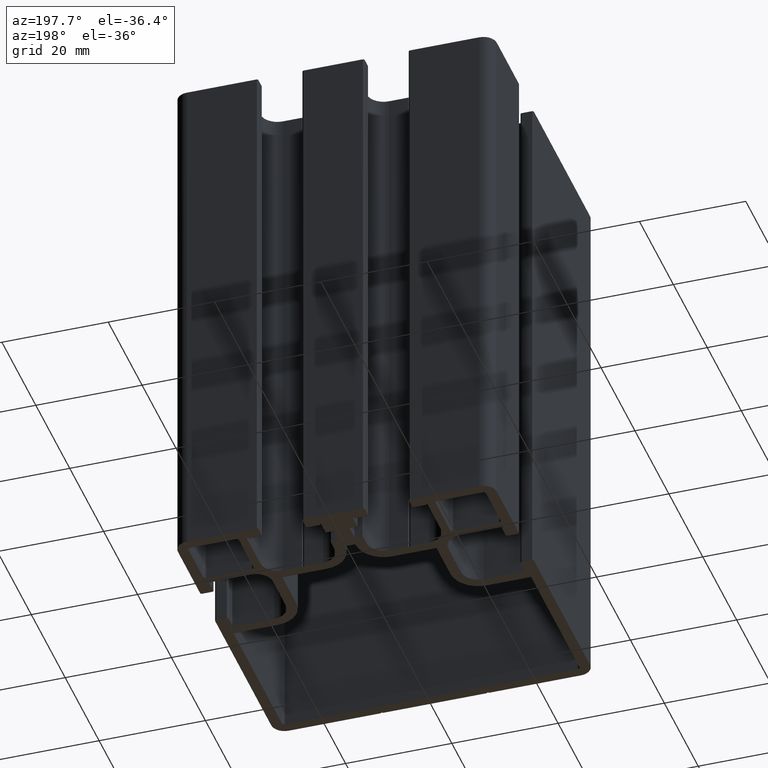
[diagram: clean part render]
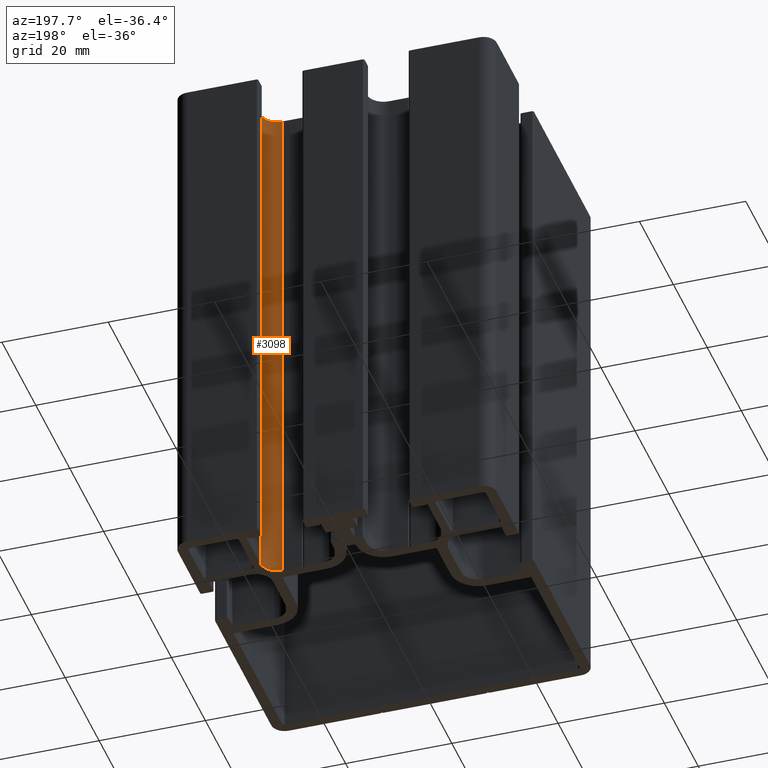
[diagram: same view with one face highlighted and labeled with its STEP entity id]
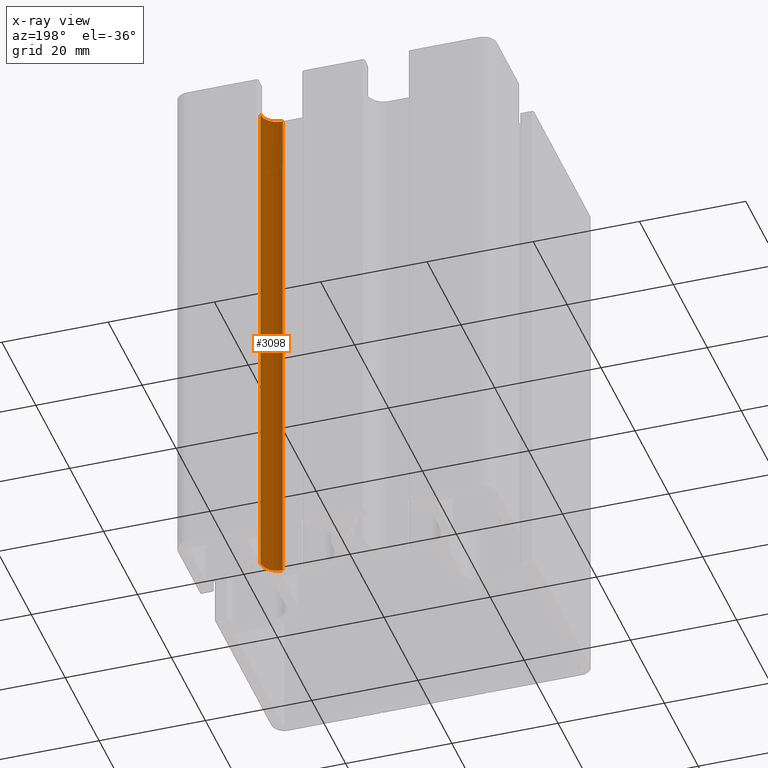
[diagram: x-ray of the same camera — body ghosted, the highlighted face saturated]
A machine part, auxiliary view. The second image highlights one B-rep face of the part: STEP entity #3098.
The next image is the same camera in x-ray: the body ghosted, the highlighted face saturated — about 0% of this face is hidden behind the body in this view.
In plain terms, the highlighted cylindrical surface (edge-blend (fillet) strip) has radius 3.2 mm, axis along (0, 0, 1).
Its self-contained STEP definition (entity closure, byte-faithful):
#133=CIRCLE('',#3367,3.20000000000098);
#134=CIRCLE('',#3368,3.20000000000098);
#197=CYLINDRICAL_SURFACE('',#3366,3.20000000000098);
#346=FACE_OUTER_BOUND('',#500,.T.);
#500=EDGE_LOOP('',(#2527,#2528,#2529,#2530));
#838=LINE('',#5142,#1174);
#839=LINE('',#5148,#1175);
#1174=VECTOR('',#4222,100.);
#1175=VECTOR('',#4229,100.);
#1477=VERTEX_POINT('',#5138);
#1478=VERTEX_POINT('',#5140);
#1479=VERTEX_POINT('',#5144);
#1480=VERTEX_POINT('',#5146);
#1926=EDGE_CURVE('',#1477,#1478,#838,.T.);
#1927=EDGE_CURVE('',#1477,#1479,#133,.T.);
#1928=EDGE_CURVE('',#1480,#1478,#134,.T.);
#1929=EDGE_CURVE('',#1479,#1480,#839,.T.);
#2527=ORIENTED_EDGE('',*,*,#1927,.F.);
#2528=ORIENTED_EDGE('',*,*,#1926,.T.);
#2529=ORIENTED_EDGE('',*,*,#1928,.F.);
#2530=ORIENTED_EDGE('',*,*,#1929,.F.);
#3098=ADVANCED_FACE('',(#346),#197,.F.);
#3366=AXIS2_PLACEMENT_3D('',#5143,#4223,#4224);
#3367=AXIS2_PLACEMENT_3D('',#5145,#4225,#4226);
#3368=AXIS2_PLACEMENT_3D('',#5147,#4227,#4228);
#4222=DIRECTION('',(0.,0.,1.));
#4223=DIRECTION('center_axis',(0.,0.,1.));
#4224=DIRECTION('ref_axis',(-6.10622663543649E-13,-1.,0.));
#4225=DIRECTION('center_axis',(0.,0.,1.));
#4226=DIRECTION('ref_axis',(-6.10622663543649E-13,-1.,0.));
#4227=DIRECTION('center_axis',(0.,0.,-1.));
#4228=DIRECTION('ref_axis',(-6.10622663543649E-13,-1.,0.));
#4229=DIRECTION('',(0.,0.,1.));
#5138=CARTESIAN_POINT('',(13.799999999998,16.499999999999,0.));
#5140=CARTESIAN_POINT('',(13.799999999998,16.499999999999,100.));
#5142=CARTESIAN_POINT('',(13.799999999998,16.499999999999,0.));
#5143=CARTESIAN_POINT('Origin',(13.8,19.7,0.));
#5144=CARTESIAN_POINT('',(17.000000000001,19.7,0.));
#5145=CARTESIAN_POINT('Origin',(13.8,19.7,0.));
#5146=CARTESIAN_POINT('',(17.000000000001,19.7,100.));
#5147=CARTESIAN_POINT('Origin',(13.8,19.7,100.));
#5148=CARTESIAN_POINT('',(17.000000000001,19.7,0.));